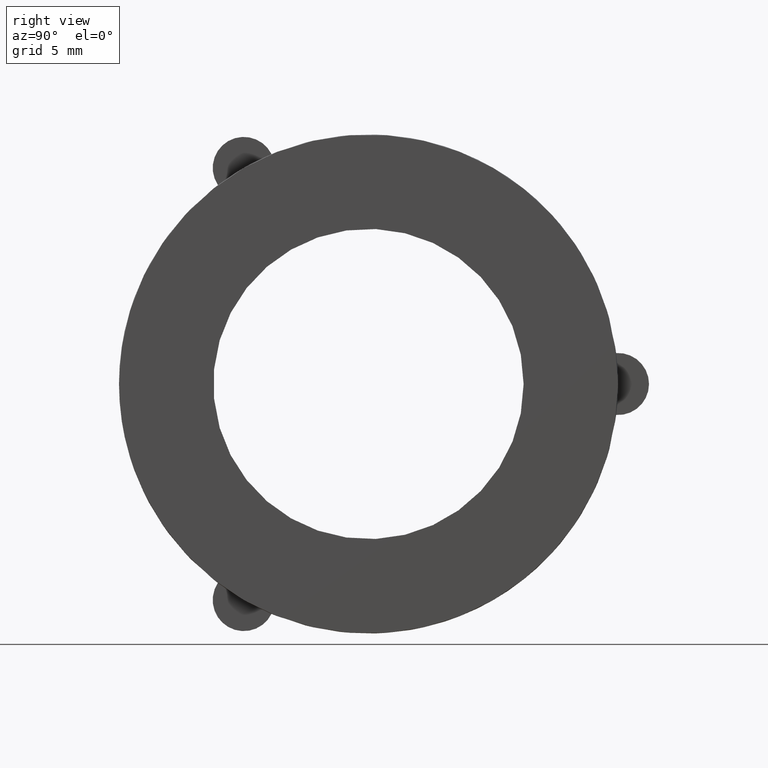
[diagram: clean part render]
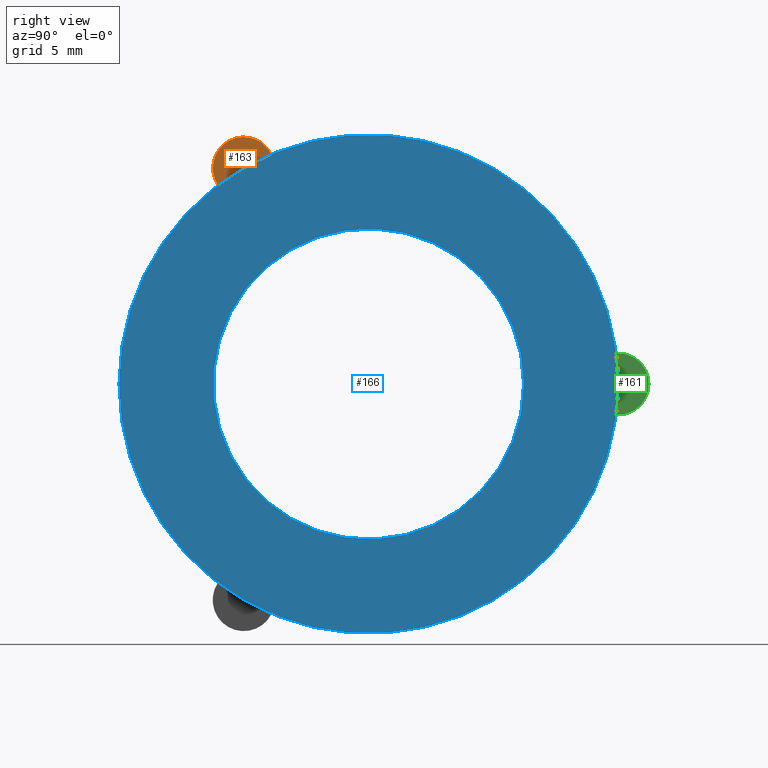
[diagram: same view with three faces highlighted in distinct colors, each labeled with its STEP entity id]
A machine part, right view with three faces highlighted in distinct colors.
Their STEP definitions:

[orange] entity #163 — the highlighted planar face has unit normal (1, 0, 0).
#41=FACE_OUTER_BOUND('',#51,.T.);
#51=EDGE_LOOP('',(#127,#128));
#67=CIRCLE('',#188,0.06);
#68=CIRCLE('',#190,0.4825);
#84=VERTEX_POINT('',#284);
#86=VERTEX_POINT('',#288);
#103=EDGE_CURVE('',#84,#86,#67,.T.);
#104=EDGE_CURVE('',#84,#86,#68,.T.);
#127=ORIENTED_EDGE('',*,*,#104,.F.);
#128=ORIENTED_EDGE('',*,*,#103,.T.);
#155=PLANE('',#189);
#163=ADVANCED_FACE('',(#41),#155,.T.);
#188=AXIS2_PLACEMENT_3D('',#290,#233,#234);
#189=AXIS2_PLACEMENT_3D('',#291,#235,#236);
#190=AXIS2_PLACEMENT_3D('',#292,#237,#238);
#233=DIRECTION('center_axis',(1.,0.,0.));
#234=DIRECTION('ref_axis',(0.,0.,-1.));
#235=DIRECTION('center_axis',(1.,0.,0.));
#236=DIRECTION('ref_axis',(0.,0.,-1.));
#237=DIRECTION('center_axis',(1.,0.,0.));
#238=DIRECTION('ref_axis',(0.,1.,0.));
#284=CARTESIAN_POINT('',(0.035,-0.187523726451678,0.444568444694038));
#288=CARTESIAN_POINT('',(0.035,-0.291245703600135,0.384684533266496));
#290=CARTESIAN_POINT('Origin',(0.035,-0.24125,0.417857257325992));
#291=CARTESIAN_POINT('Origin',(0.035,-0.24125,0.417857257325992));
#292=CARTESIAN_POINT('Origin',(0.035,0.,0.));

[blue] entity #166 — the highlighted planar face has unit normal (1, 0, 0).
#17=FACE_BOUND('',#57,.T.);
#44=FACE_OUTER_BOUND('',#56,.T.);
#56=EDGE_LOOP('',(#149));
#57=EDGE_LOOP('',(#150));
#73=CIRCLE('',#197,0.4825);
#74=CIRCLE('',#199,0.3);
#88=VERTEX_POINT('',#300);
#89=VERTEX_POINT('',#303);
#109=EDGE_CURVE('',#88,#88,#73,.T.);
#110=EDGE_CURVE('',#89,#89,#74,.T.);
#149=ORIENTED_EDGE('',*,*,#109,.T.);
#150=ORIENTED_EDGE('',*,*,#110,.F.);
#157=PLANE('',#198);
#166=ADVANCED_FACE('',(#44,#17),#157,.T.);
#197=AXIS2_PLACEMENT_3D('',#301,#251,#252);
#198=AXIS2_PLACEMENT_3D('',#302,#253,#254);
#199=AXIS2_PLACEMENT_3D('',#304,#255,#256);
#251=DIRECTION('center_axis',(1.,0.,0.));
#252=DIRECTION('ref_axis',(0.,0.,-1.));
#253=DIRECTION('center_axis',(1.,0.,0.));
#254=DIRECTION('ref_axis',(0.,0.,-1.));
#255=DIRECTION('center_axis',(1.,0.,0.));
#256=DIRECTION('ref_axis',(0.,0.,-1.));
#300=CARTESIAN_POINT('',(0.14,0.4825,0.));
#301=CARTESIAN_POINT('Origin',(0.14,0.,0.));
#302=CARTESIAN_POINT('Origin',(0.14,0.3,0.));
#303=CARTESIAN_POINT('',(0.14,0.3,0.));
#304=CARTESIAN_POINT('Origin',(0.14,0.,0.));

[green] entity #161 — the highlighted planar face has unit normal (1, 0, 0).
#39=FACE_OUTER_BOUND('',#49,.T.);
#49=EDGE_LOOP('',(#121,#122));
#64=CIRCLE('',#183,0.06);
#65=CIRCLE('',#185,0.4825);
#80=VERTEX_POINT('',#273);
#82=VERTEX_POINT('',#277);
#98=EDGE_CURVE('',#80,#82,#64,.T.);
#99=EDGE_CURVE('',#80,#82,#65,.T.);
#121=ORIENTED_EDGE('',*,*,#99,.F.);
#122=ORIENTED_EDGE('',*,*,#98,.T.);
#154=PLANE('',#184);
#161=ADVANCED_FACE('',(#39),#154,.T.);
#183=AXIS2_PLACEMENT_3D('',#279,#221,#222);
#184=AXIS2_PLACEMENT_3D('',#280,#223,#224);
#185=AXIS2_PLACEMENT_3D('',#281,#225,#226);
#221=DIRECTION('center_axis',(1.,0.,0.));
#222=DIRECTION('ref_axis',(0.,0.,-1.));
#223=DIRECTION('center_axis',(1.,0.,0.));
#224=DIRECTION('ref_axis',(0.,0.,-1.));
#225=DIRECTION('center_axis',(1.,0.,0.));
#226=DIRECTION('ref_axis',(0.,1.,0.));
#273=CARTESIAN_POINT('',(0.035,0.478769430051813,-0.0598839114275419));
#277=CARTESIAN_POINT('',(0.035,0.478769430051813,0.0598839114275419));
#279=CARTESIAN_POINT('Origin',(0.035,0.4825,0.));
#280=CARTESIAN_POINT('Origin',(0.035,0.4825,-3.5999086944821E-18));
#281=CARTESIAN_POINT('Origin',(0.035,0.,0.));